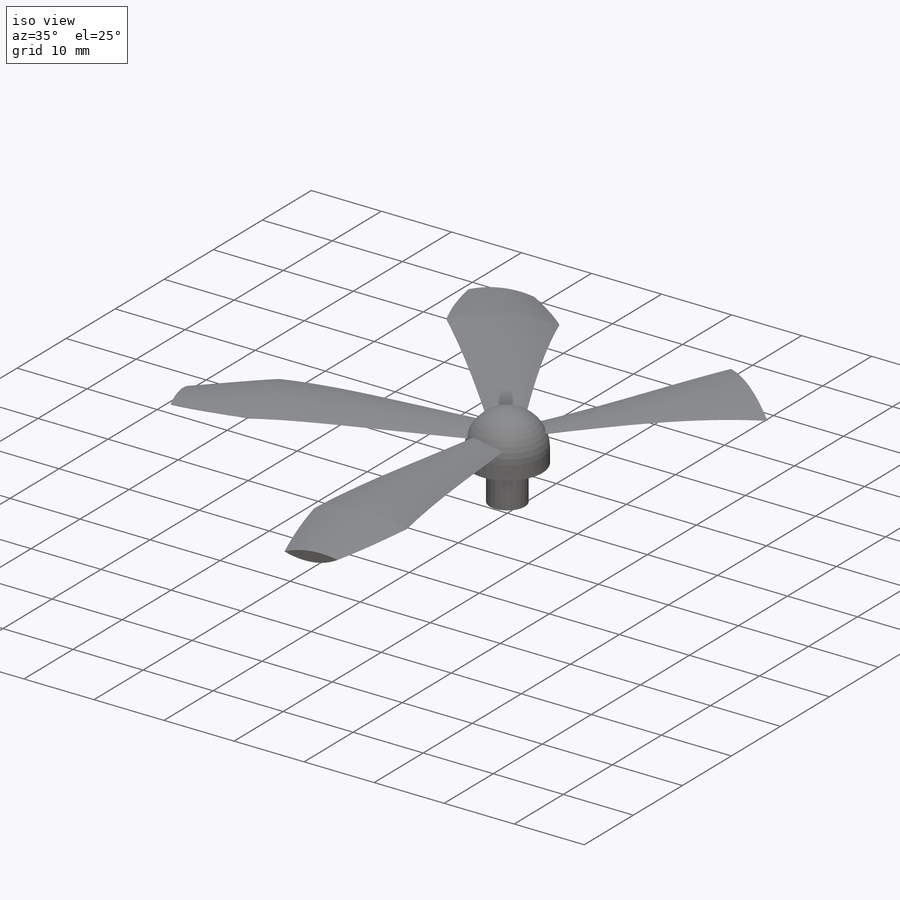
[diagram: iso view]
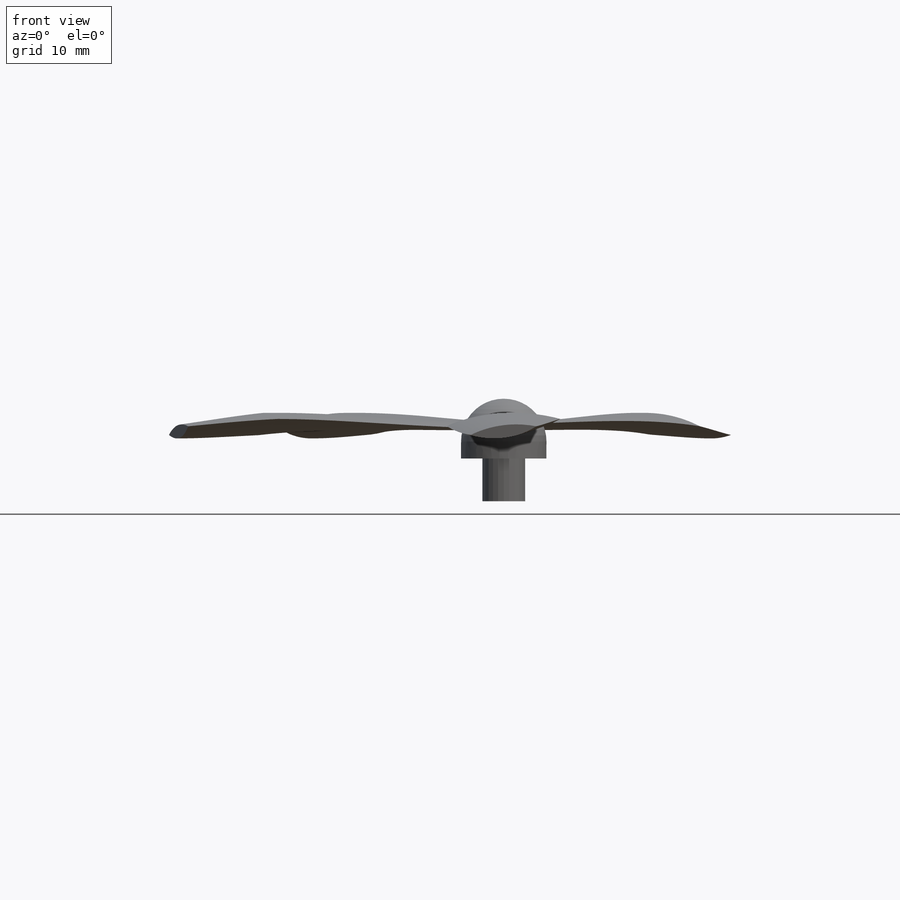
[diagram: front view]
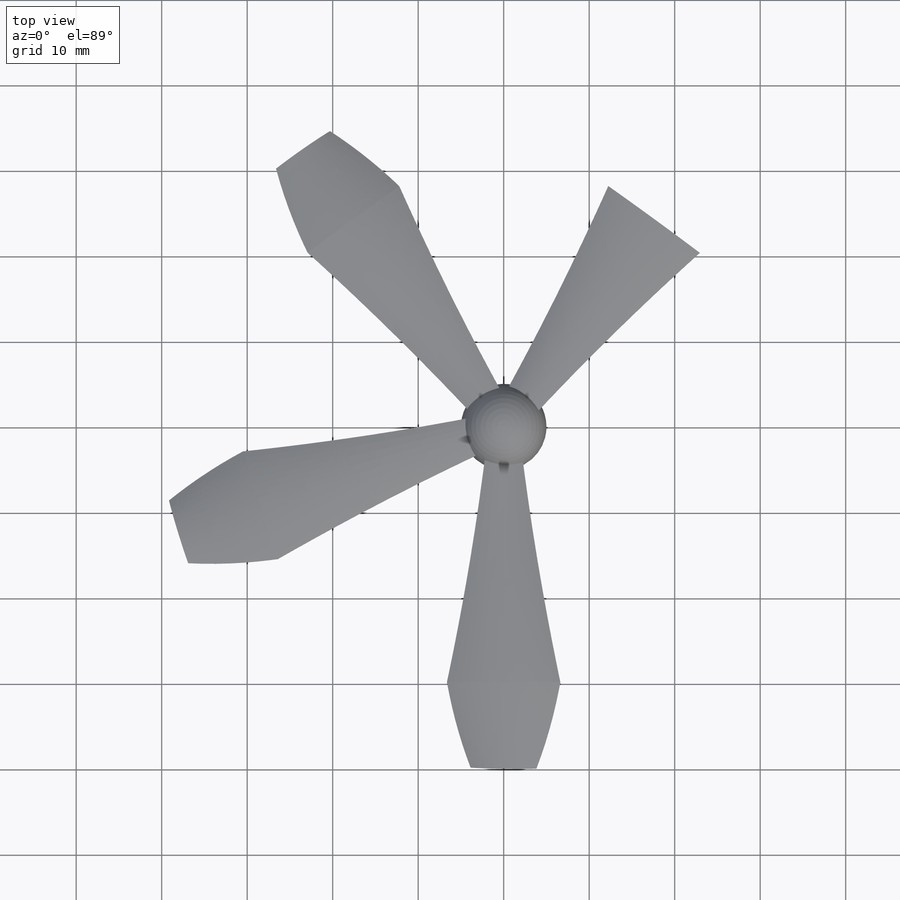
[diagram: top view]
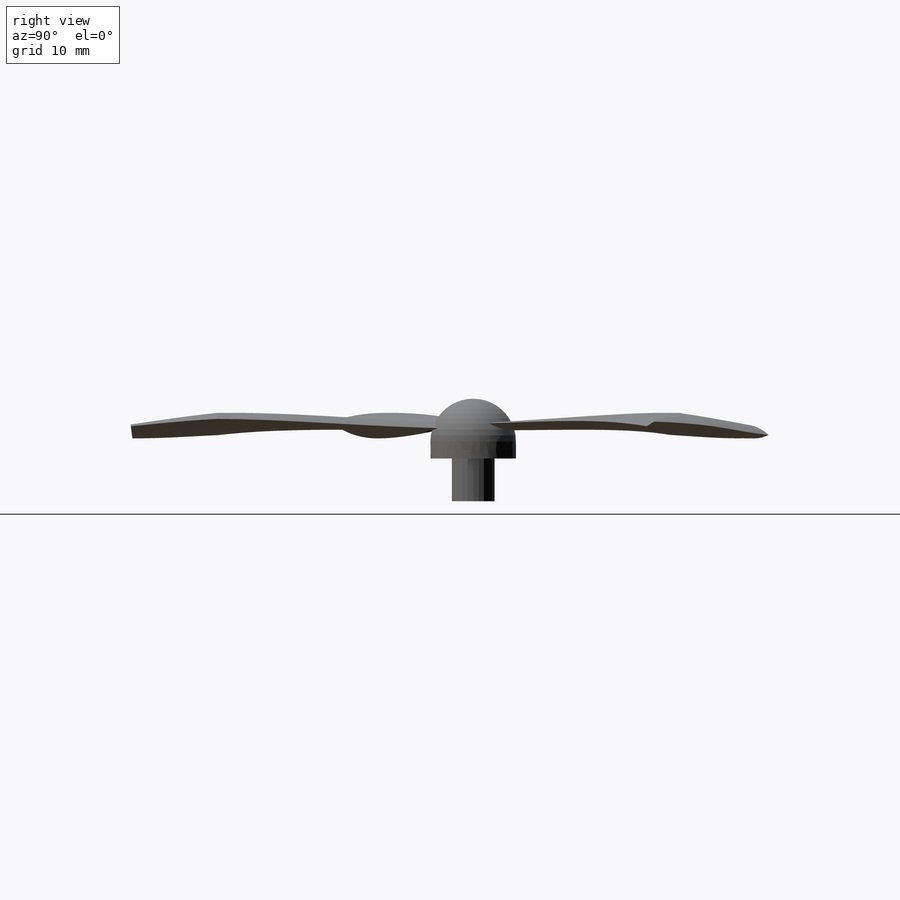
[diagram: right view]
SOLIDWORKS PART (.sldprt)
format: sldprt  version: not decoded by parser v0  size: 1,068,544 bytes
history: native  units: mm
features: extrude x7, sketch x4, material x1, pattern_circular x1, revolve x1 (+14 scaffold rows collapsed)
feature tree (28):
  scaffold x14  (default folders/planes/origin — collapsed)
  material  "Material <not specified>"
  sketch  "Sketch1"  dims[D1=~0.658541mm]
  extrude  "Extrude1"  Depth=5mm
  sketch  "Sketch2"  dims[D1=~6.972999mm]
  extrude  "Extrude2"  Depth=2mm
  sketch  "Sketch3"
  extrude  "Extrude3"  Depth=40mm
  extrude  "Flex2"  Depth=0mm
  extrude  "Flex3"  Depth=0mm
  extrude  "Flex4"  Depth=0mm
  extrude  "Flex5"  Depth=30mm
  pattern_circular  "CirPattern1"  Count=5 Angle=360deg
  sketch  "Sketch7"
  revolve  "Revolve1"  Angle=360deg
decode coverage: 11 of 13 modeling features carry decoded parameters
note: ~ marks probable driven/reference dimensions
note: suppression state not decoded; provenance and decode notes live in map.json
